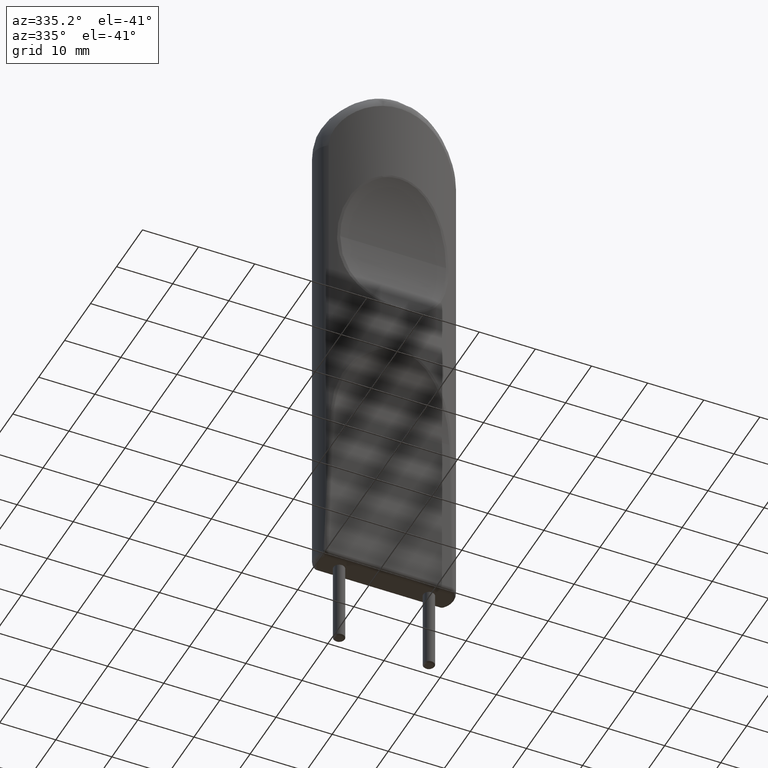
[diagram: clean part render]
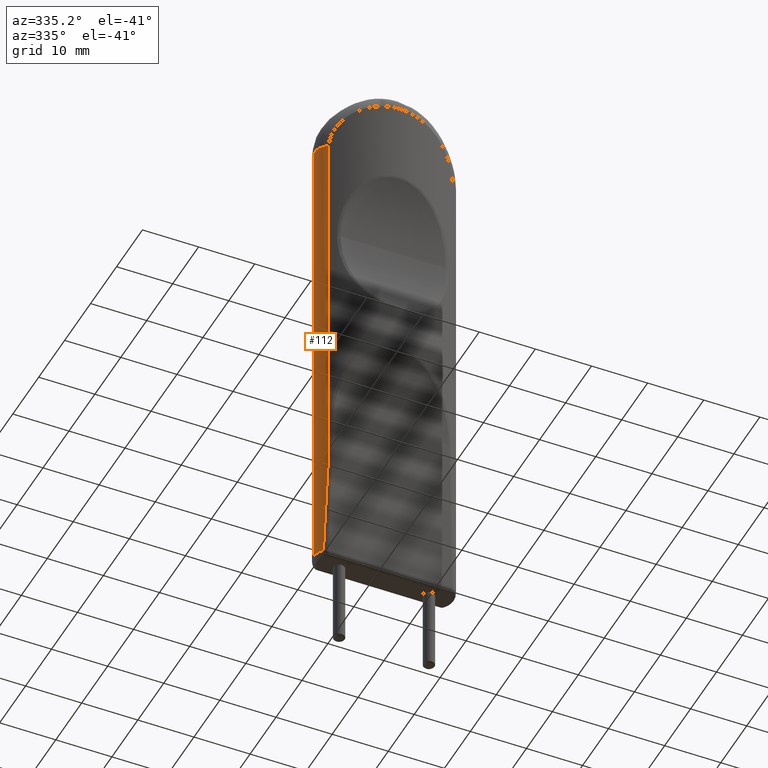
[diagram: same view with one face highlighted and labeled with its STEP entity id]
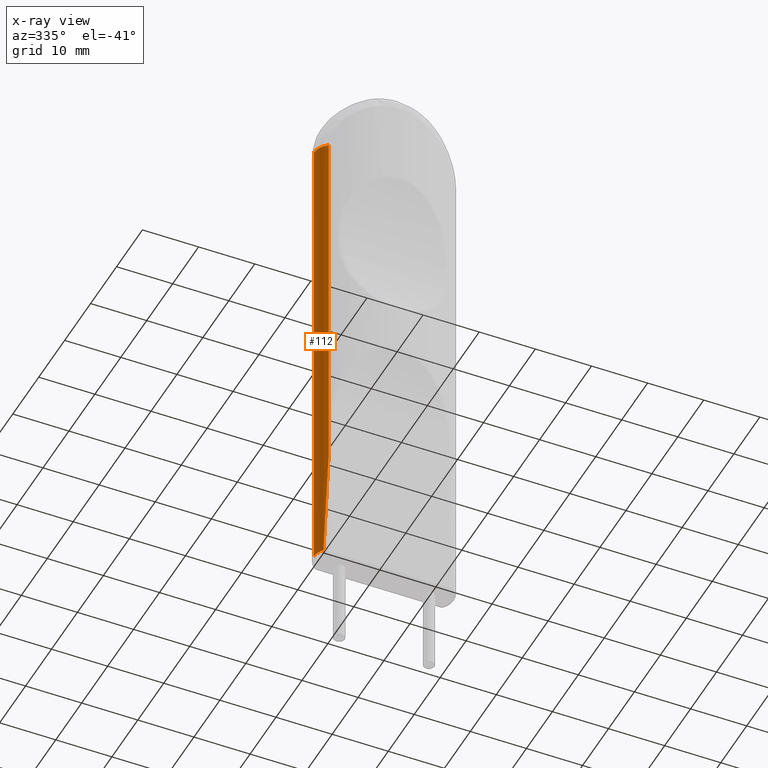
[diagram: x-ray of the same camera — body ghosted, the highlighted face saturated]
A machine part, auxiliary view. The second image highlights one B-rep face of the part: STEP entity #112.
The next image is the same camera in x-ray: the body ghosted, the highlighted face saturated — about 0% of this face is hidden behind the body in this view.
In plain terms, the highlighted cylindrical surface (edge-blend (fillet) strip) has radius 3.2 mm, axis along (0, 0, -1).
Its self-contained STEP definition (entity closure, byte-faithful):
#112=ADVANCED_FACE('NONE',(#257),#258,.T.);
#257=FACE_OUTER_BOUND('',#746,.T.);
#258=CYLINDRICAL_SURFACE('',#747,3.2);
#746=EDGE_LOOP('',(#2148,#2149,#2150,#2151,#2152));
#747=AXIS2_PLACEMENT_3D('',#2153,#2154,#2155);
#2148=ORIENTED_EDGE('',*,*,#2398,.T.);
#2149=ORIENTED_EDGE('',*,*,#2474,.T.);
#2150=ORIENTED_EDGE('',*,*,#2475,.T.);
#2151=ORIENTED_EDGE('',*,*,#2470,.T.);
#2152=ORIENTED_EDGE('',*,*,#2476,.T.);
#2153=CARTESIAN_POINT('',(-9.3,0.0,-100.0));
#2154=DIRECTION('',(0.0,0.0,-1.0));
#2155=DIRECTION('',(1.0,0.0,0.0));
#2398=EDGE_CURVE('',#2570,#2554,#2571,.T.);
#2470=EDGE_CURVE('NONE',#2685,#2683,#2686,.T.);
#2474=EDGE_CURVE('NONE',#2554,#2690,#2691,.T.);
#2475=EDGE_CURVE('NONE',#2690,#2685,#2692,.T.);
#2476=EDGE_CURVE('NONE',#2683,#2570,#2693,.T.);
#2554=VERTEX_POINT('',#2783);
#2570=VERTEX_POINT('NONE',#2890);
#2571=LINE('',#2891,#2892);
#2683=VERTEX_POINT('NONE',#3526);
#2685=VERTEX_POINT('NONE',#3573);
#2686=LINE('',#3574,#3575);
#2690=VERTEX_POINT('NONE',#3640);
#2691=CIRCLE('',#3641,3.2);
#2692=(B_SPLINE_CURVE(3,(#3643,#3644,#3645,#3646),.UNSPECIFIED.,.F.,.F.)B_SPLINE_CURVE_WITH_KNOTS((4,4),(5.41373673135434,5.69653870102264),.UNSPECIFIED.)RATIONAL_B_SPLINE_CURVE((1.0,0.993346351141325,0.993346351141325,1.0))BOUNDED_CURVE()REPRESENTATION_ITEM('')GEOMETRIC_REPRESENTATION_ITEM()CURVE());
#2693=CIRCLE('',#3653,3.2);
#2783=CARTESIAN_POINT('',(-12.5,-3.91874033223243E-016,-99.0));
#2890=CARTESIAN_POINT('',(-12.5,0.0,-12.5));
#2891=CARTESIAN_POINT('',(-12.5,-3.91874033223243E-016,-55.750003307451));
#2892=VECTOR('',#4073,1.0);
#3526=CARTESIAN_POINT('',(-11.0714285714286,-2.66496544373966,-12.5));
#3573=CARTESIAN_POINT('',(-11.0714285714286,-2.66496544373966,-78.0976042018179));
#3574=CARTESIAN_POINT('',(-11.0714285714286,-2.66496544373966,-100.0));
#3575=VECTOR('',#4156,1000.0);
#3640=CARTESIAN_POINT('',(-11.7447143932564,-2.06479333963594,-99.0));
#3641=AXIS2_PLACEMENT_3D('',#4157,#4158,#4159);
#3643=CARTESIAN_POINT('',(-11.7447143932564,-2.06479333963594,-99.0));
#3644=CARTESIAN_POINT('',(-11.5494204079576,-2.29602133113103,-90.9469449432895));
#3645=CARTESIAN_POINT('',(-11.323488529295,-2.49741872671688,-83.9328100868466));
#3646=CARTESIAN_POINT('',(-11.0714285714286,-2.66496544373966,-78.0976042018179));
#3653=AXIS2_PLACEMENT_3D('',#4160,#4161,#4162);
#4073=DIRECTION('',(0.0,0.0,-1.0));
#4156=DIRECTION('',(0.0,0.0,1.0));
#4157=CARTESIAN_POINT('',(-9.3,0.0,-99.0));
#4158=DIRECTION('',(0.0,0.0,1.0));
#4159=DIRECTION('',(1.0,0.0,0.0));
#4160=CARTESIAN_POINT('',(-9.3,0.0,-12.5));
#4161=DIRECTION('',(0.0,0.0,-1.0));
#4162=DIRECTION('',(1.0,1.77635683940025E-015,0.0));